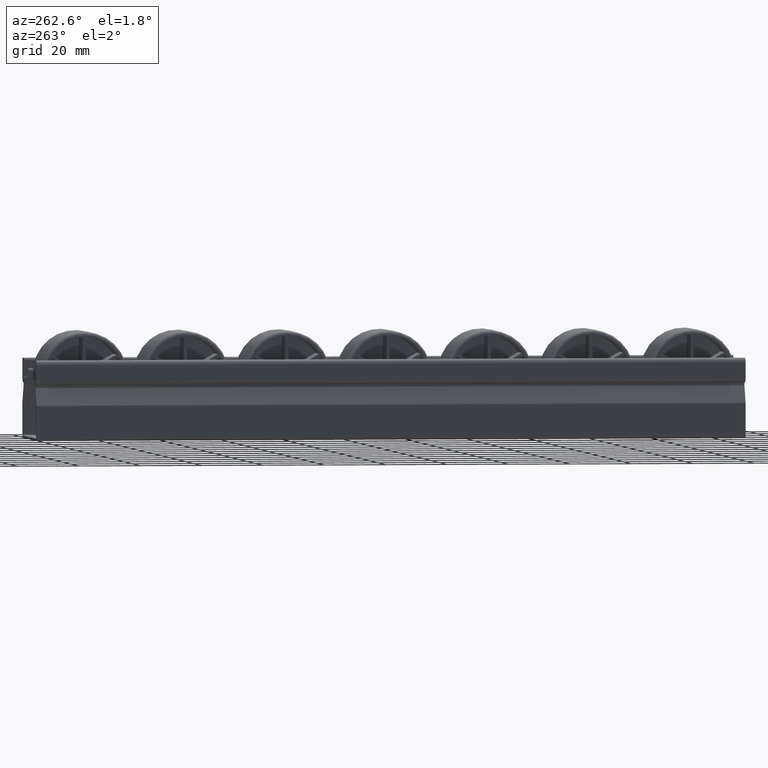
[diagram: clean part render]
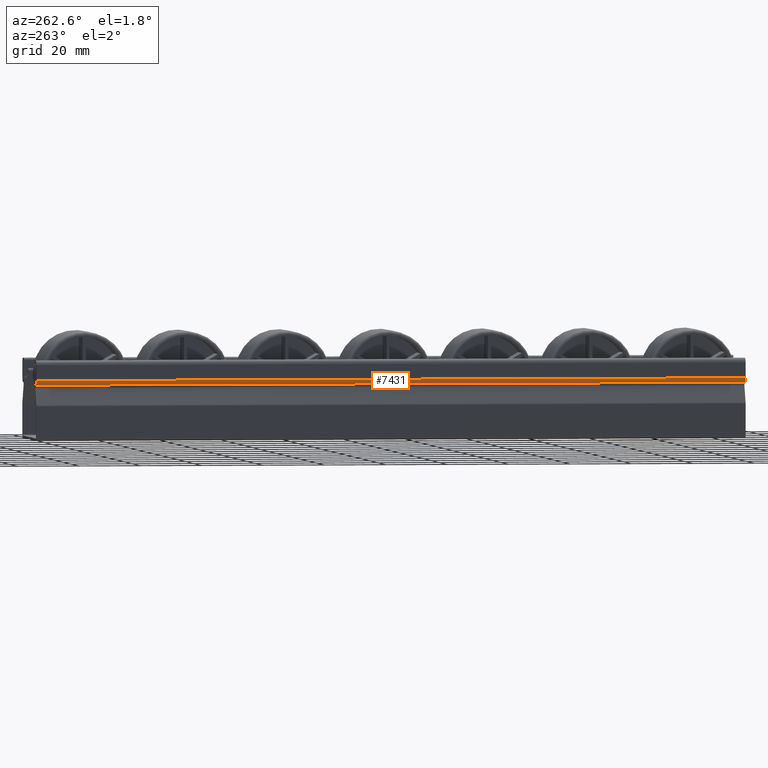
[diagram: same view with one face highlighted and labeled with its STEP entity id]
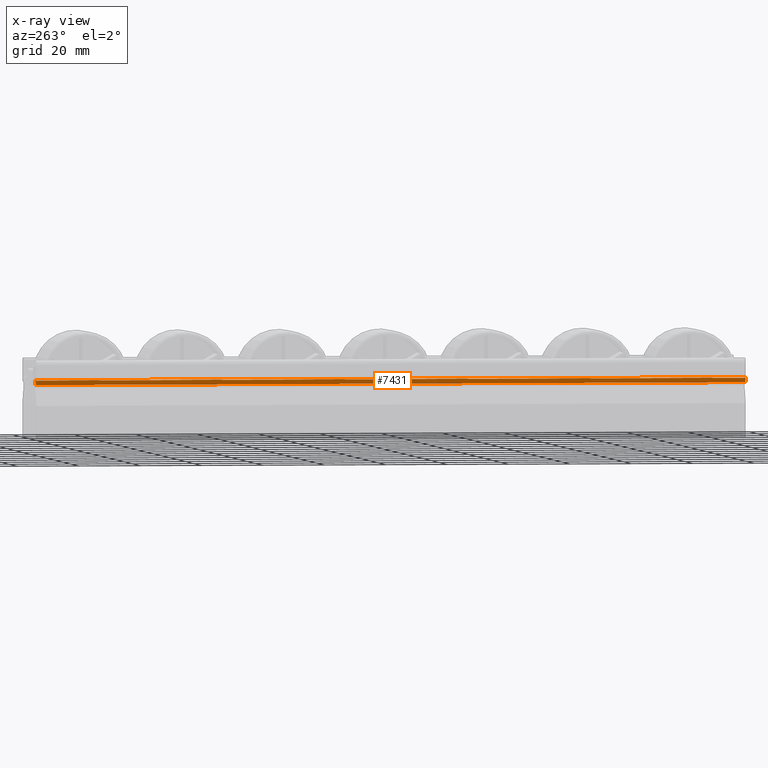
[diagram: x-ray of the same camera — body ghosted, the highlighted face saturated]
A machine part, auxiliary view. The second image highlights one B-rep face of the part: STEP entity #7431.
The next image is the same camera in x-ray: the body ghosted, the highlighted face saturated — about 0% of this face is hidden behind the body in this view.
In plain terms, the highlighted cylindrical surface (edge-blend (fillet) strip) has radius 1.5 mm, axis along (0, 1, -0).
Its self-contained STEP definition (entity closure, byte-faithful):
#269=CYLINDRICAL_SURFACE('',#8152,1.49999999999999);
#563=FACE_OUTER_BOUND('',#950,.T.);
#950=EDGE_LOOP('',(#6534,#6535,#6536,#6537,#6538,#6539,#6540,#6541,#6542,
#6543,#6544,#6545,#6546,#6547,#6548,#6549,#6550));
#1343=CIRCLE('',#7912,1.49999999999999);
#1369=CIRCLE('',#8061,1.49999999999999);
#1919=LINE('',#12039,#2615);
#1921=LINE('',#12042,#2617);
#1923=LINE('',#12045,#2619);
#1925=LINE('',#12048,#2621);
#1927=LINE('',#12051,#2623);
#1929=LINE('',#12054,#2625);
#1931=LINE('',#12057,#2627);
#1933=LINE('',#12060,#2629);
#1935=LINE('',#12063,#2631);
#1937=LINE('',#12066,#2633);
#1939=LINE('',#12069,#2635);
#1941=LINE('',#12072,#2637);
#1943=LINE('',#12075,#2639);
#2066=LINE('',#12444,#2762);
#2067=LINE('',#12446,#2763);
#2615=VECTOR('',#9682,16.5);
#2617=VECTOR('',#9686,16.5);
#2619=VECTOR('',#9690,16.5);
#2621=VECTOR('',#9694,16.5);
#2623=VECTOR('',#9698,16.5);
#2625=VECTOR('',#9702,16.5);
#2627=VECTOR('',#9706,16.5);
#2629=VECTOR('',#9710,16.5);
#2631=VECTOR('',#9714,16.5);
#2633=VECTOR('',#9718,16.5);
#2635=VECTOR('',#9722,16.5);
#2637=VECTOR('',#9726,16.5);
#2639=VECTOR('',#9730,16.5);
#2762=VECTOR('',#10169,231.);
#2763=VECTOR('',#10172,16.5);
#2890=VERTEX_POINT('',#10635);
#2905=VERTEX_POINT('',#10671);
#2941=VERTEX_POINT('',#10759);
#2977=VERTEX_POINT('',#10847);
#3013=VERTEX_POINT('',#10935);
#3049=VERTEX_POINT('',#11023);
#3085=VERTEX_POINT('',#11111);
#3121=VERTEX_POINT('',#11199);
#3157=VERTEX_POINT('',#11287);
#3193=VERTEX_POINT('',#11375);
#3229=VERTEX_POINT('',#11463);
#3265=VERTEX_POINT('',#11551);
#3301=VERTEX_POINT('',#11639);
#3337=VERTEX_POINT('',#11727);
#3386=VERTEX_POINT('',#11845);
#3411=VERTEX_POINT('',#12037);
#3439=VERTEX_POINT('',#12251);
#4234=EDGE_CURVE('',#2890,#3386,#1343,.T.);
#4344=EDGE_CURVE('',#3411,#3337,#1919,.T.);
#4346=EDGE_CURVE('',#3337,#3301,#1921,.T.);
#4348=EDGE_CURVE('',#3301,#3265,#1923,.T.);
#4350=EDGE_CURVE('',#3265,#3229,#1925,.T.);
#4352=EDGE_CURVE('',#3229,#3193,#1927,.T.);
#4354=EDGE_CURVE('',#3193,#3157,#1929,.T.);
#4356=EDGE_CURVE('',#3157,#3121,#1931,.T.);
#4358=EDGE_CURVE('',#3121,#3085,#1933,.T.);
#4360=EDGE_CURVE('',#3085,#3049,#1935,.T.);
#4362=EDGE_CURVE('',#3049,#3013,#1937,.T.);
#4364=EDGE_CURVE('',#3013,#2977,#1939,.T.);
#4366=EDGE_CURVE('',#2977,#2941,#1941,.T.);
#4368=EDGE_CURVE('',#2941,#2905,#1943,.T.);
#4465=EDGE_CURVE('',#3439,#3411,#1369,.T.);
#4554=EDGE_CURVE('',#3439,#3386,#2066,.T.);
#4555=EDGE_CURVE('',#2905,#2890,#2067,.T.);
#6534=ORIENTED_EDGE('',*,*,#4465,.F.);
#6535=ORIENTED_EDGE('',*,*,#4554,.T.);
#6536=ORIENTED_EDGE('',*,*,#4234,.F.);
#6537=ORIENTED_EDGE('',*,*,#4555,.F.);
#6538=ORIENTED_EDGE('',*,*,#4368,.F.);
#6539=ORIENTED_EDGE('',*,*,#4366,.F.);
#6540=ORIENTED_EDGE('',*,*,#4364,.F.);
#6541=ORIENTED_EDGE('',*,*,#4362,.F.);
#6542=ORIENTED_EDGE('',*,*,#4360,.F.);
#6543=ORIENTED_EDGE('',*,*,#4358,.F.);
#6544=ORIENTED_EDGE('',*,*,#4356,.F.);
#6545=ORIENTED_EDGE('',*,*,#4354,.F.);
#6546=ORIENTED_EDGE('',*,*,#4352,.F.);
#6547=ORIENTED_EDGE('',*,*,#4350,.F.);
#6548=ORIENTED_EDGE('',*,*,#4348,.F.);
#6549=ORIENTED_EDGE('',*,*,#4346,.F.);
#6550=ORIENTED_EDGE('',*,*,#4344,.F.);
#7431=ADVANCED_FACE('',(#563),#269,.T.);
#7912=AXIS2_PLACEMENT_3D('',#11846,#9444,#9445);
#8061=AXIS2_PLACEMENT_3D('',#12253,#9947,#9948);
#8152=AXIS2_PLACEMENT_3D('',#12445,#10170,#10171);
#9444=DIRECTION('center_axis',(0.,0.,1.));
#9445=DIRECTION('ref_axis',(1.,-1.48029736616688E-15,0.));
#9682=DIRECTION('',(0.,0.,1.));
#9686=DIRECTION('',(0.,0.,1.));
#9690=DIRECTION('',(0.,0.,1.));
#9694=DIRECTION('',(0.,0.,1.));
#9698=DIRECTION('',(0.,0.,1.));
#9702=DIRECTION('',(0.,0.,1.));
#9706=DIRECTION('',(0.,0.,1.));
#9710=DIRECTION('',(0.,0.,1.));
#9714=DIRECTION('',(0.,0.,1.));
#9718=DIRECTION('',(0.,0.,1.));
#9722=DIRECTION('',(0.,0.,1.));
#9726=DIRECTION('',(0.,0.,1.));
#9730=DIRECTION('',(0.,0.,1.));
#9947=DIRECTION('center_axis',(0.,0.,-1.));
#9948=DIRECTION('ref_axis',(2.96059473233375E-15,1.,0.));
#10169=DIRECTION('',(0.,0.,1.));
#10170=DIRECTION('center_axis',(0.,0.,1.));
#10171=DIRECTION('ref_axis',(1.,-1.48029736616688E-15,0.));
#10172=DIRECTION('',(0.,0.,1.));
#10635=CARTESIAN_POINT('',(22.5385522336796,7.8858189989122,231.));
#10671=CARTESIAN_POINT('',(22.5385522336796,7.8858189989122,214.5));
#10759=CARTESIAN_POINT('',(22.5385522336796,7.8858189989122,198.));
#10847=CARTESIAN_POINT('',(22.5385522336796,7.8858189989122,181.5));
#10935=CARTESIAN_POINT('',(22.5385522336796,7.8858189989122,165.));
#11023=CARTESIAN_POINT('',(22.5385522336796,7.8858189989122,148.5));
#11111=CARTESIAN_POINT('',(22.5385522336796,7.8858189989122,132.));
#11199=CARTESIAN_POINT('',(22.5385522336796,7.8858189989122,115.5));
#11287=CARTESIAN_POINT('',(22.5385522336796,7.8858189989122,99.));
#11375=CARTESIAN_POINT('',(22.5385522336796,7.8858189989122,82.5));
#11463=CARTESIAN_POINT('',(22.5385522336796,7.8858189989122,66.));
#11551=CARTESIAN_POINT('',(22.5385522336796,7.8858189989122,49.5));
#11639=CARTESIAN_POINT('',(22.5385522336796,7.8858189989122,33.));
#11727=CARTESIAN_POINT('',(22.5385522336796,7.8858189989122,16.5));
#11845=CARTESIAN_POINT('',(25.5385522336796,7.88581899891219,231.));
#11846=CARTESIAN_POINT('Origin',(24.0385522336796,7.88581899891219,231.));
#12037=CARTESIAN_POINT('',(22.5385522336796,7.8858189989122,0.));
#12039=CARTESIAN_POINT('',(22.5385522336796,7.8858189989122,0.));
#12042=CARTESIAN_POINT('',(22.5385522336796,7.8858189989122,0.));
#12045=CARTESIAN_POINT('',(22.5385522336796,7.8858189989122,0.));
#12048=CARTESIAN_POINT('',(22.5385522336796,7.8858189989122,0.));
#12051=CARTESIAN_POINT('',(22.5385522336796,7.8858189989122,0.));
#12054=CARTESIAN_POINT('',(22.5385522336796,7.8858189989122,0.));
#12057=CARTESIAN_POINT('',(22.5385522336796,7.8858189989122,0.));
#12060=CARTESIAN_POINT('',(22.5385522336796,7.8858189989122,0.));
#12063=CARTESIAN_POINT('',(22.5385522336796,7.8858189989122,0.));
#12066=CARTESIAN_POINT('',(22.5385522336796,7.8858189989122,0.));
#12069=CARTESIAN_POINT('',(22.5385522336796,7.8858189989122,0.));
#12072=CARTESIAN_POINT('',(22.5385522336796,7.8858189989122,0.));
#12075=CARTESIAN_POINT('',(22.5385522336796,7.8858189989122,0.));
#12251=CARTESIAN_POINT('',(25.5385522336796,7.88581899891219,0.));
#12253=CARTESIAN_POINT('Origin',(24.0385522336796,7.88581899891219,0.));
#12444=CARTESIAN_POINT('',(25.5385522336796,7.88581899891219,0.));
#12445=CARTESIAN_POINT('Origin',(24.0385522336796,7.88581899891219,0.));
#12446=CARTESIAN_POINT('',(22.5385522336796,7.8858189989122,0.));